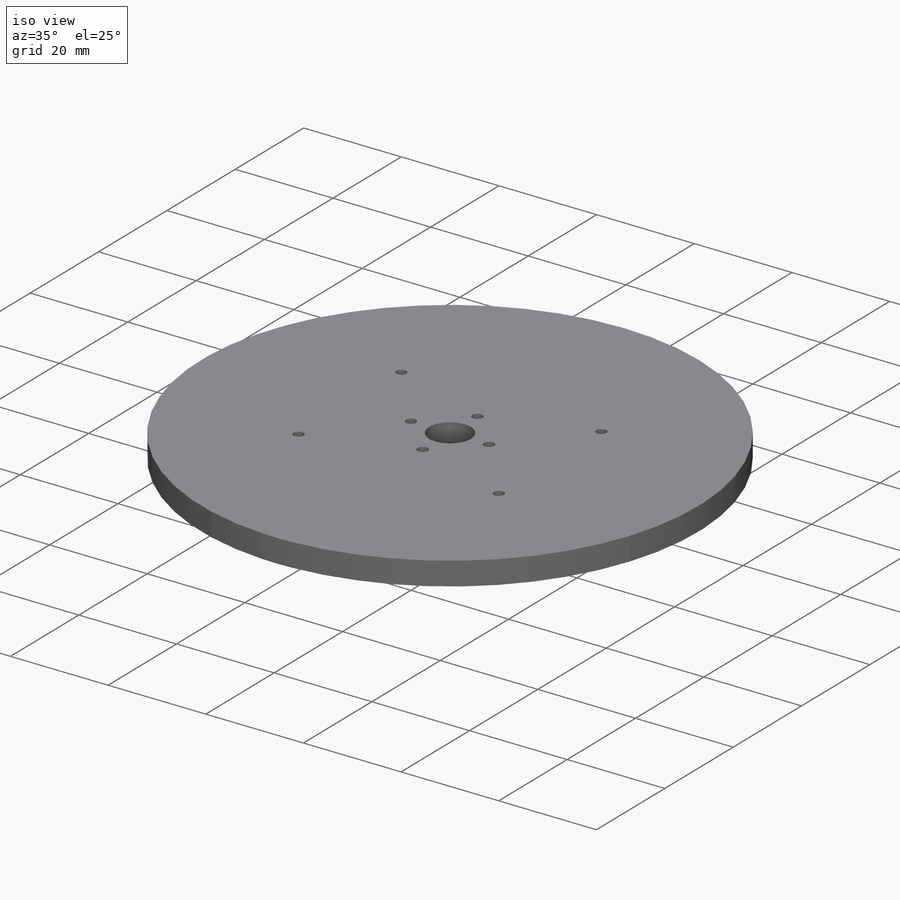
[diagram: iso view]
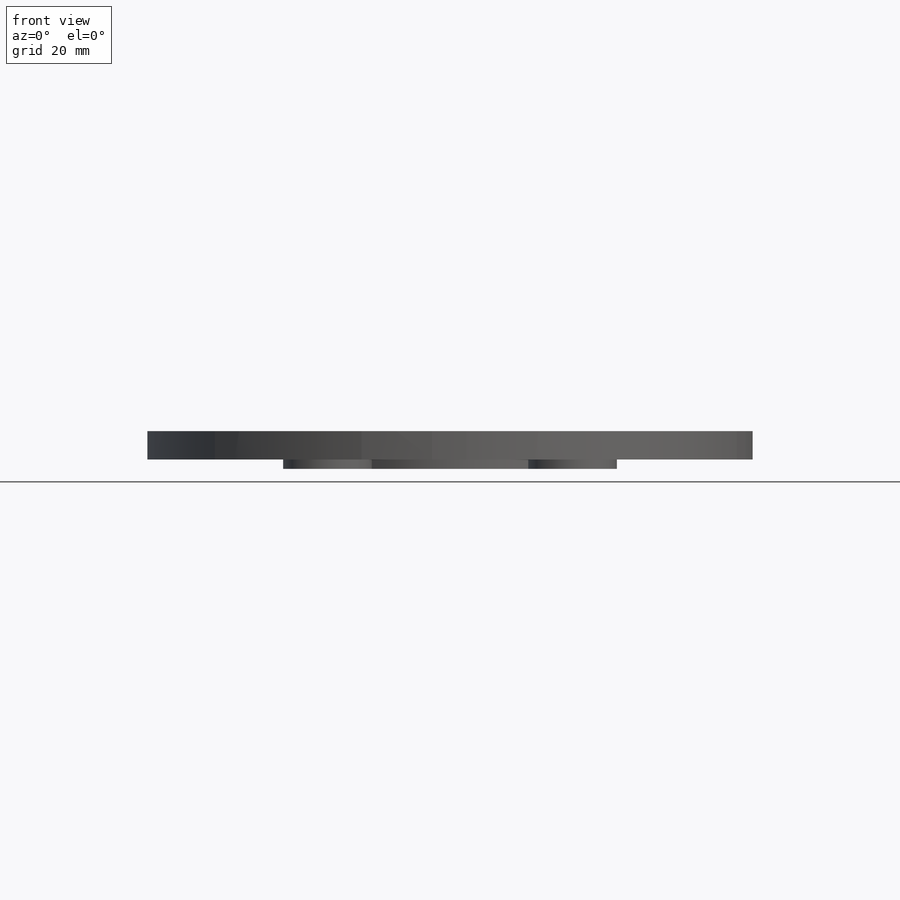
[diagram: front view]
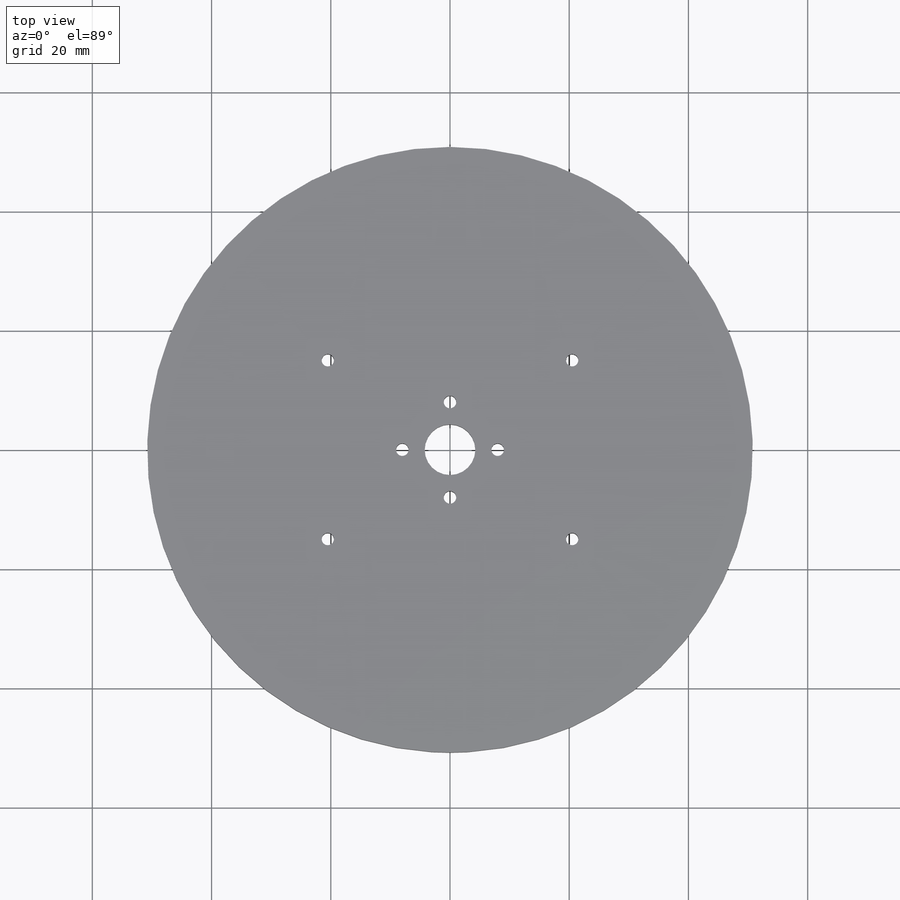
[diagram: top view]
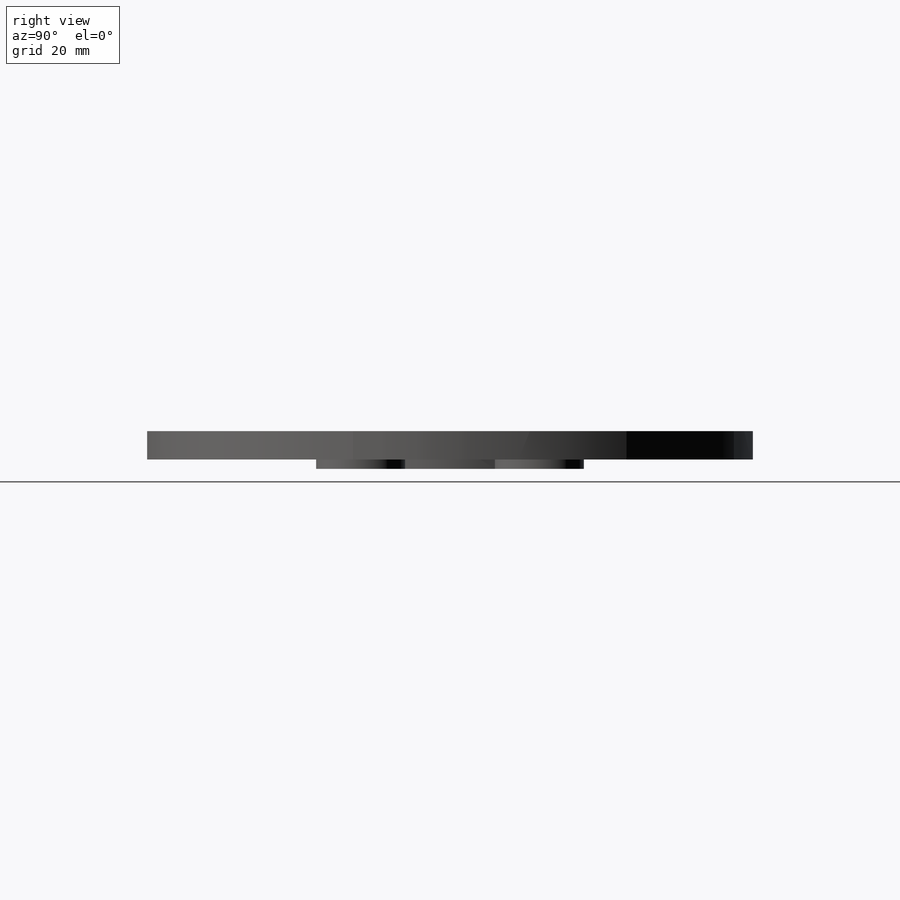
[diagram: right view]
SOLIDWORKS PART (.sldprt)
format: sldprt  version: not decoded by parser v0  size: 297,984 bytes
history: native  units: mm
features: sketch x7, cut_extrude x3, extrude x2, material x1 (+11 scaffold rows collapsed)
feature tree (24):
  scaffold x11  (default folders/planes/origin — collapsed)
  material  "Material <not specified>"
  sketch  "Sketch1"  dims[D1=101.6mm]
  extrude  "Boss-Extrude1"  Depth=4.7625mm
  sketch  "Sketch2"  dims[D1=2.1mm D2=16.0mm]
  cut_extrude  "Cut-Extrude1"  [1 undecoded]
  sketch  "Sketch3"  dims[D1=8.5mm]
  cut_extrude  "Cut-Extrude2"  [1 undecoded]
  sketch  "Sketch4"  dims[D3=2.05mm D1=41.0mm D2=30.0mm]
  cut_extrude  "Cut-Extrude3"  [1 undecoded]
  sketch  "Sketch6"  dims[c1.D2=30.0mm c1.D3=15.0mm c1.D4=~44.244791mm c1.D1=4.95mm c2.D4=6.0mm]
  extrude  "Boss-Extrude2"  Depth=1.5875mm
  sketch  "Sketch7"  dims[D1=0.0mm]
  sketch  "Sketch8"  dims[D1=0.0mm]
decode coverage: 9 of 12 modeling features carry decoded parameters
note: ~ marks probable driven/reference dimensions
note: 3 parameter values undecoded
summary: no parameter record found for 3 features
note: suppression state not decoded; provenance and decode notes live in map.json
